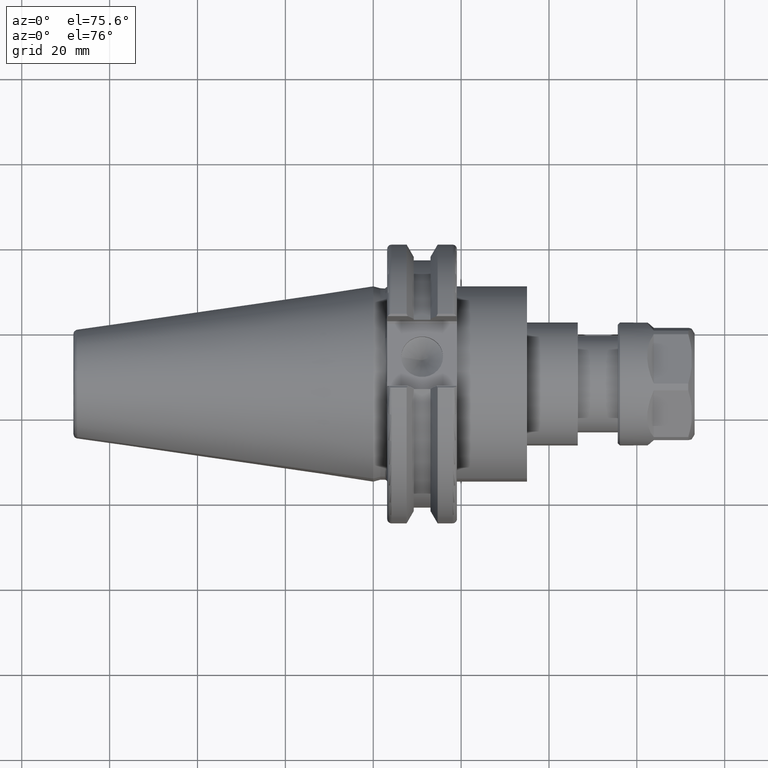
[diagram: clean part render]
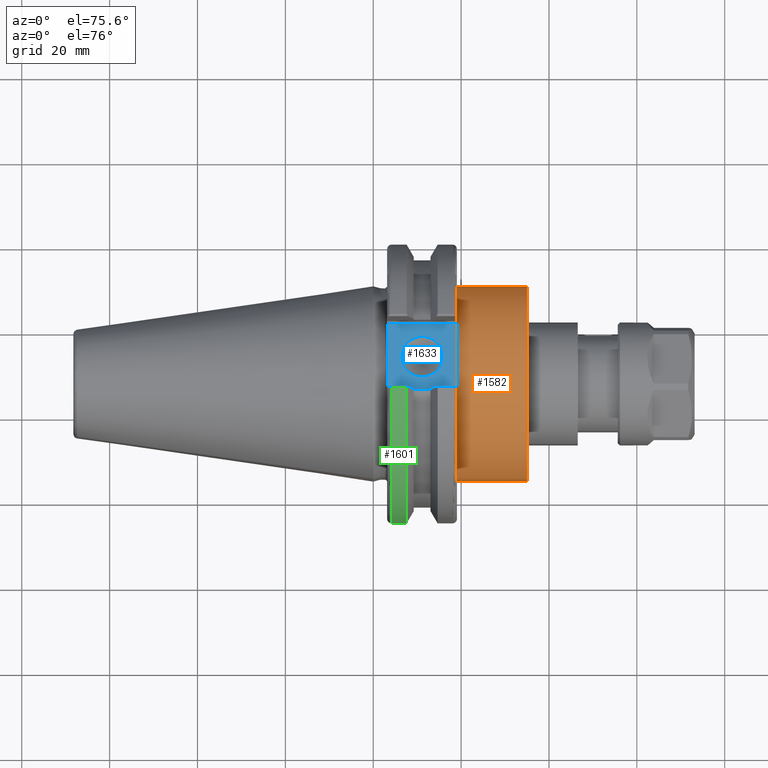
[diagram: same view with three faces highlighted in distinct colors, each labeled with its STEP entity id]
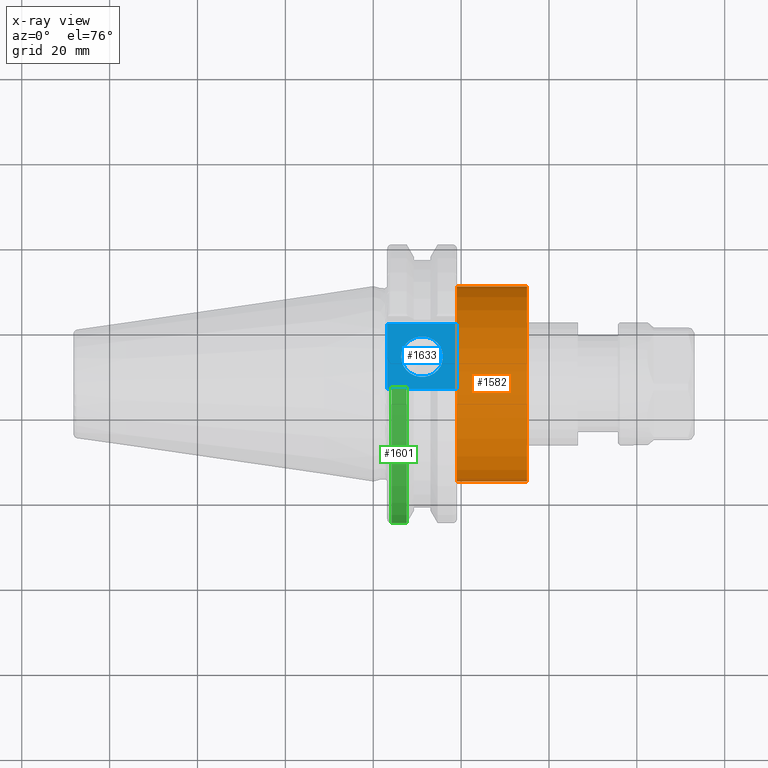
[diagram: x-ray of the same camera — body ghosted, the three highlighted faces saturated]
A machine part, auxiliary view with three faces highlighted in distinct colors.
The next image is the same camera in x-ray (body ghosted, the three faces saturated) — at least one of them is partly hidden behind the body in this view.
Their STEP definitions:

[orange] entity #1582 — the highlighted cylindrical surface (bore or boss wall) has radius 22.225 mm, axis along (1, 0, 0).
#202=FACE_OUTER_BOUND('',#298,.T.);
#298=EDGE_LOOP('',(#1107,#1108,#1109,#1110));
#406=LINE('',#2441,#515);
#515=VECTOR('',#1967,22.225);
#627=CIRCLE('',#1760,22.225);
#628=CIRCLE('',#1761,22.225);
#706=VERTEX_POINT('',#2438);
#707=VERTEX_POINT('',#2440);
#864=EDGE_CURVE('',#706,#706,#627,.T.);
#865=EDGE_CURVE('',#706,#707,#406,.T.);
#866=EDGE_CURVE('',#707,#707,#628,.T.);
#1107=ORIENTED_EDGE('',*,*,#864,.F.);
#1108=ORIENTED_EDGE('',*,*,#865,.T.);
#1109=ORIENTED_EDGE('',*,*,#866,.F.);
#1110=ORIENTED_EDGE('',*,*,#865,.F.);
#1556=CYLINDRICAL_SURFACE('',#1759,22.225);
#1582=ADVANCED_FACE('',(#202),#1556,.T.);
#1759=AXIS2_PLACEMENT_3D('',#2437,#1963,#1964);
#1760=AXIS2_PLACEMENT_3D('',#2439,#1965,#1966);
#1761=AXIS2_PLACEMENT_3D('',#2442,#1968,#1969);
#1963=DIRECTION('center_axis',(1.,0.,0.));
#1964=DIRECTION('ref_axis',(0.,1.,0.));
#1965=DIRECTION('center_axis',(1.,0.,0.));
#1966=DIRECTION('ref_axis',(0.,0.,-1.));
#1967=DIRECTION('',(-1.,0.,0.));
#1968=DIRECTION('center_axis',(-1.,0.,0.));
#1969=DIRECTION('ref_axis',(0.,1.,0.));
#2437=CARTESIAN_POINT('Origin',(27.025,0.,0.));
#2438=CARTESIAN_POINT('',(35.,-22.225,-2.72177751110499E-15));
#2439=CARTESIAN_POINT('Origin',(35.,0.,0.));
#2440=CARTESIAN_POINT('',(19.05,-22.225,-2.72177751110499E-15));
#2441=CARTESIAN_POINT('',(27.025,-22.225,-2.72177751110499E-15));
#2442=CARTESIAN_POINT('Origin',(19.05,0.,0.));

[blue] entity #1633 — the highlighted planar face has unit normal (0, 0, 1).
#125=FACE_BOUND('',#356,.T.);
#161=PLANE('',#1850);
#253=FACE_OUTER_BOUND('',#355,.T.);
#355=EDGE_LOOP('',(#1372,#1373,#1374,#1375));
#356=EDGE_LOOP('',(#1376));
#412=LINE('',#2479,#521);
#431=LINE('',#2576,#540);
#456=LINE('',#2764,#565);
#458=LINE('',#2767,#567);
#521=VECTOR('',#2011,10.);
#540=VECTOR('',#2048,10.);
#565=VECTOR('',#2127,10.);
#567=VECTOR('',#2131,10.);
#659=CIRCLE('',#1833,4.7625);
#719=VERTEX_POINT('',#2476);
#720=VERTEX_POINT('',#2478);
#745=VERTEX_POINT('',#2573);
#746=VERTEX_POINT('',#2575);
#796=VERTEX_POINT('',#2824);
#882=EDGE_CURVE('',#719,#720,#412,.T.);
#913=EDGE_CURVE('',#745,#746,#431,.T.);
#967=EDGE_CURVE('',#746,#719,#456,.T.);
#969=EDGE_CURVE('',#720,#745,#458,.T.);
#991=EDGE_CURVE('',#796,#796,#659,.T.);
#1372=ORIENTED_EDGE('',*,*,#967,.F.);
#1373=ORIENTED_EDGE('',*,*,#913,.F.);
#1374=ORIENTED_EDGE('',*,*,#969,.F.);
#1375=ORIENTED_EDGE('',*,*,#882,.F.);
#1376=ORIENTED_EDGE('',*,*,#991,.T.);
#1633=ADVANCED_FACE('',(#253,#125),#161,.T.);
#1833=AXIS2_PLACEMENT_3D('',#2825,#2174,#2175);
#1850=AXIS2_PLACEMENT_3D('',#2843,#2209,#2210);
#2011=DIRECTION('',(0.,1.,0.));
#2048=DIRECTION('',(0.,-1.,0.));
#2127=DIRECTION('',(-1.,1.31581988103722E-16,0.));
#2131=DIRECTION('',(1.,0.,0.));
#2174=DIRECTION('center_axis',(0.,0.,-1.));
#2175=DIRECTION('ref_axis',(1.,0.,0.));
#2209=DIRECTION('center_axis',(0.,0.,1.));
#2210=DIRECTION('ref_axis',(1.,0.,0.));
#2476=CARTESIAN_POINT('',(3.175,-7.68999999999999,25.));
#2478=CARTESIAN_POINT('',(3.175,7.69,25.));
#2479=CARTESIAN_POINT('',(3.175,15.875,25.));
#2573=CARTESIAN_POINT('',(19.05,7.69,25.));
#2575=CARTESIAN_POINT('',(19.05,-7.69,25.));
#2576=CARTESIAN_POINT('',(19.05,0.,25.));
#2764=CARTESIAN_POINT('',(9.44125,-7.69,25.));
#2767=CARTESIAN_POINT('',(17.87875,7.69,25.));
#2824=CARTESIAN_POINT('',(6.3645,-5.83238038093927E-16,25.));
#2825=CARTESIAN_POINT('Origin',(11.127,0.,25.));
#2843=CARTESIAN_POINT('Origin',(15.7075,0.,25.));

[green] entity #1601 — the highlighted cylindrical surface (partial cylindrical patch) has radius 31.75 mm, axis along (1, 0, 0).
#221=FACE_OUTER_BOUND('',#322,.T.);
#322=EDGE_LOOP('',(#1227,#1228,#1229,#1230));
#450=LINE('',#2698,#559);
#451=LINE('',#2704,#560);
#559=VECTOR('',#2083,10.);
#560=VECTOR('',#2086,10.);
#645=CIRCLE('',#1795,31.75);
#646=CIRCLE('',#1798,31.75);
#771=VERTEX_POINT('',#2677);
#772=VERTEX_POINT('',#2686);
#773=VERTEX_POINT('',#2697);
#774=VERTEX_POINT('',#2703);
#945=EDGE_CURVE('',#771,#772,#645,.T.);
#947=EDGE_CURVE('',#772,#773,#450,.T.);
#949=EDGE_CURVE('',#774,#771,#451,.T.);
#950=EDGE_CURVE('',#773,#774,#646,.T.);
#1227=ORIENTED_EDGE('',*,*,#945,.F.);
#1228=ORIENTED_EDGE('',*,*,#949,.F.);
#1229=ORIENTED_EDGE('',*,*,#950,.F.);
#1230=ORIENTED_EDGE('',*,*,#947,.F.);
#1560=CYLINDRICAL_SURFACE('',#1797,31.75);
#1601=ADVANCED_FACE('',(#221),#1560,.T.);
#1795=AXIS2_PLACEMENT_3D('',#2687,#2079,#2080);
#1797=AXIS2_PLACEMENT_3D('',#2702,#2084,#2085);
#1798=AXIS2_PLACEMENT_3D('',#2705,#2087,#2088);
#2079=DIRECTION('center_axis',(-1.,0.,0.));
#2080=DIRECTION('ref_axis',(0.,-1.,1.60812264967664E-16));
#2083=DIRECTION('',(1.,0.,0.));
#2084=DIRECTION('center_axis',(1.,0.,0.));
#2085=DIRECTION('ref_axis',(0.,-1.,1.22464679914735E-16));
#2086=DIRECTION('',(-1.,0.,0.));
#2087=DIRECTION('center_axis',(1.,0.,0.));
#2088=DIRECTION('ref_axis',(0.,0.,-1.));
#2677=CARTESIAN_POINT('',(4.175,-8.67204822802685,-30.5427254764662));
#2686=CARTESIAN_POINT('',(4.175,-8.67204822802685,30.5427254764662));
#2687=CARTESIAN_POINT('Origin',(4.175,0.,0.));
#2697=CARTESIAN_POINT('',(7.60083323092435,-8.67204822802685,30.5427254764662));
#2698=CARTESIAN_POINT('',(5.38791661546218,-8.67204822802685,30.5427254764662));
#2702=CARTESIAN_POINT('Origin',(5.38791661546218,0.,0.));
#2703=CARTESIAN_POINT('',(7.60083323092435,-8.67204822802685,-30.5427254764662));
#2704=CARTESIAN_POINT('',(5.38791661546218,-8.67204822802685,-30.5427254764662));
#2705=CARTESIAN_POINT('Origin',(7.60083323092435,0.,0.));